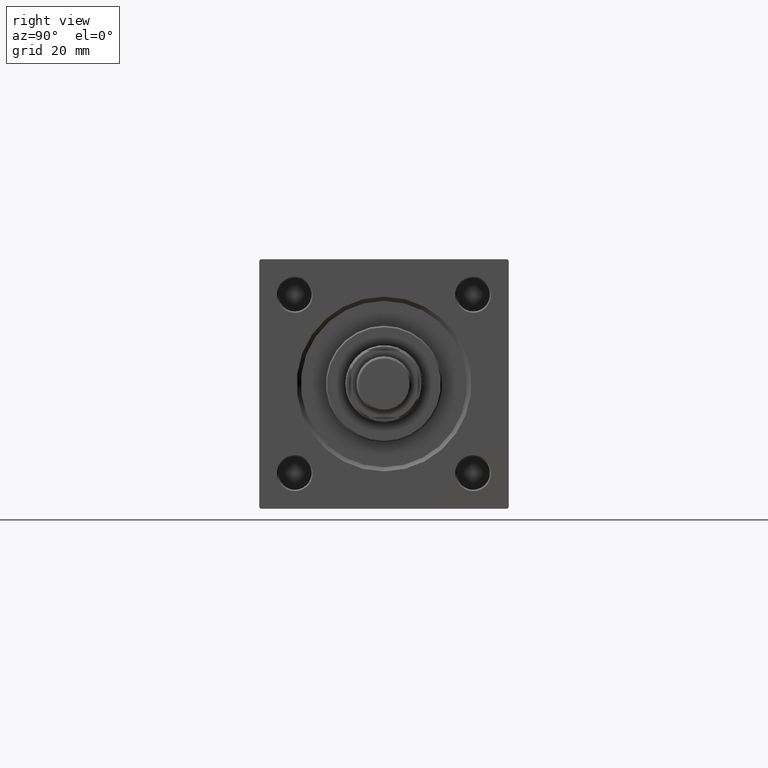
[diagram: clean part render]
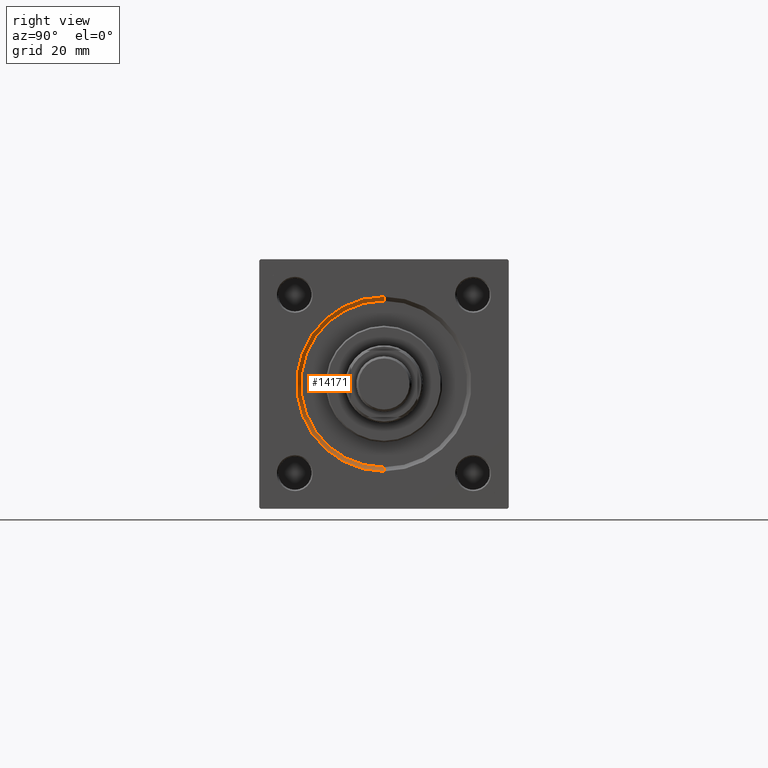
[diagram: same view with one face highlighted and labeled with its STEP entity id]
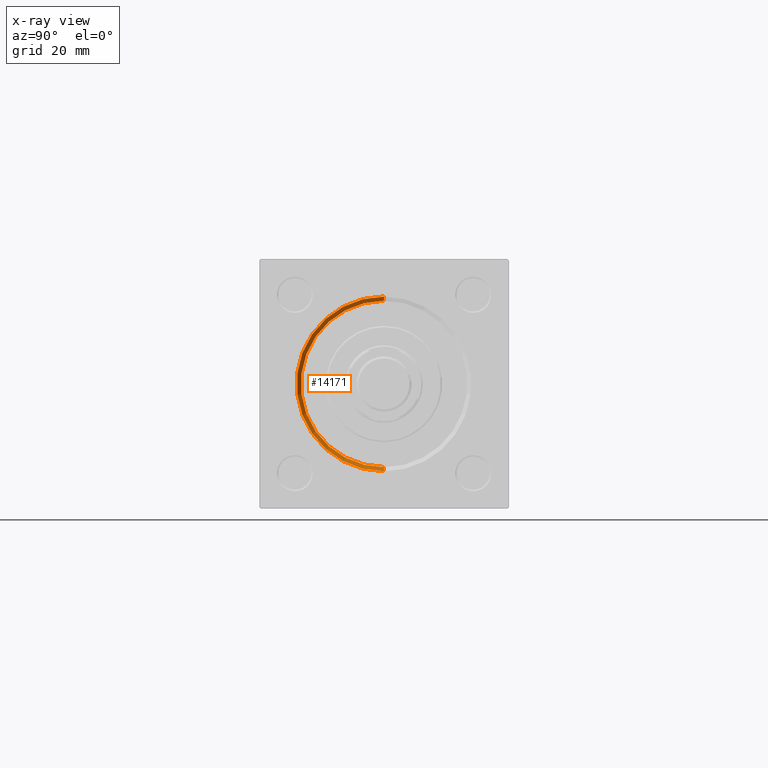
[diagram: x-ray of the same camera — body ghosted, the highlighted face saturated]
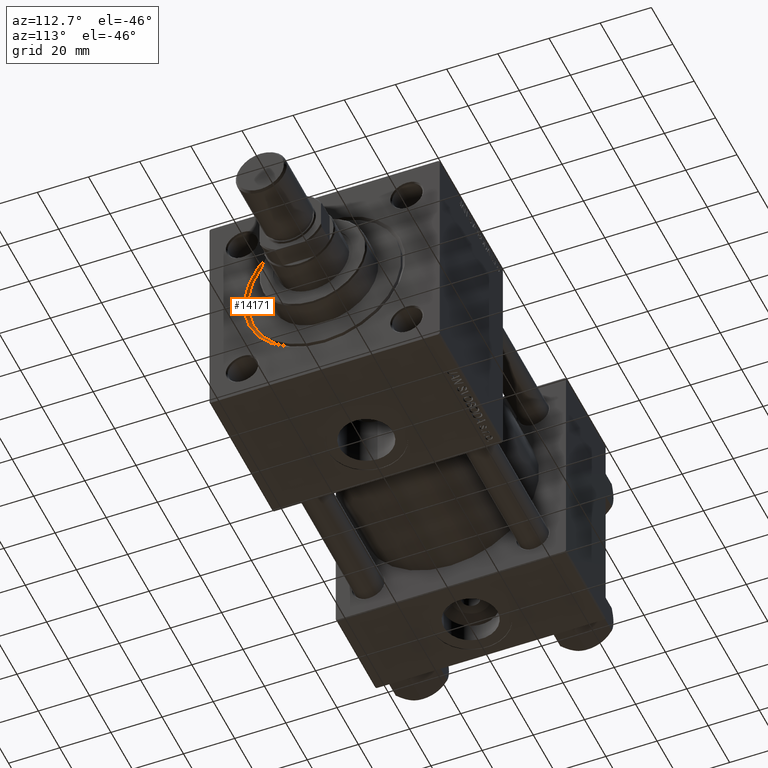
[diagram: same view with one face highlighted and labeled with its STEP entity id]
A machine part, right view. The second image highlights one B-rep face of the part: STEP entity #14171.
The next image is the same camera in x-ray: the body ghosted, the highlighted face saturated — about 0% of this face is hidden behind the body in this view.
A second angle (auxiliary view) of the same face is appended — the face is thin or edge-on in the first view.
In plain terms, the highlighted conical surface has half-angle 45 deg.
Its self-contained STEP definition (entity closure, byte-faithful):
#191 = CARTESIAN_POINT ( 'NONE',  ( 153.5000000000000000, 0.000000000000000000, 0.000000000000000000 ) ) ;
#1059 = AXIS2_PLACEMENT_3D ( 'NONE', #46242, #14729, #50345 ) ;
#5140 = DIRECTION ( 'NONE',  ( 0.7071067811865474617, 8.659560562354932858E-17, 0.7071067811865474617 ) ) ;
#5352 = VERTEX_POINT ( 'NONE', #12361 ) ;
#9822 = VERTEX_POINT ( 'NONE', #42904 ) ;
#10388 = DIRECTION ( 'NONE',  ( 0.7071067811865474617, 0.000000000000000000, -0.7071067811865474617 ) ) ;
#11144 = ORIENTED_EDGE ( 'NONE', *, *, #34006, .F. ) ;
#11342 = DIRECTION ( 'NONE',  ( 0.000000000000000000, 0.000000000000000000, -1.000000000000000000 ) ) ;
#11379 = CARTESIAN_POINT ( 'NONE',  ( 153.5000000000000000, 0.000000000000000000, -30.00000000000000000 ) ) ;
#11400 = ORIENTED_EDGE ( 'NONE', *, *, #16127, .F. ) ;
#12361 = CARTESIAN_POINT ( 'NONE',  ( 155.0000000000000000, 0.000000000000000000, -31.50000000000000000 ) ) ;
#13752 = EDGE_CURVE ( 'NONE', #38362, #38996, #38772, .T. ) ;
#14171 = ADVANCED_FACE ( 'NONE', ( #30569 ), #28929, .F. ) ;
#14729 = DIRECTION ( 'NONE',  ( -1.000000000000000000, -0.000000000000000000, -0.000000000000000000 ) ) ;
#15557 = DIRECTION ( 'NONE',  ( 1.000000000000000000, 0.000000000000000000, 0.000000000000000000 ) ) ;
#16127 = EDGE_CURVE ( 'NONE', #5352, #9822, #45252, .T. ) ;
#16665 = LINE ( 'NONE', #39226, #27921 ) ;
#16677 = AXIS2_PLACEMENT_3D ( 'NONE', #191, #15557, #18890 ) ;
#18890 = DIRECTION ( 'NONE',  ( 0.000000000000000000, 0.000000000000000000, 1.000000000000000000 ) ) ;
#19112 = CARTESIAN_POINT ( 'NONE',  ( 153.5000000000000000, 0.000000000000000000, -30.00000000000000000 ) ) ;
#19532 = CARTESIAN_POINT ( 'NONE',  ( 153.5000000000000000, 0.000000000000000000, 0.000000000000000000 ) ) ;
#27921 = VECTOR ( 'NONE', #5140, 1000.000000000000114 ) ;
#28929 = CONICAL_SURFACE ( 'NONE', #37143, 30.00000000000000000, 0.7853981633974482790 ) ;
#30569 = FACE_OUTER_BOUND ( 'NONE', #42279, .T. ) ;
#30858 = LINE ( 'NONE', #11379, #41705 ) ;
#34006 = EDGE_CURVE ( 'NONE', #38996, #5352, #30858, .T. ) ;
#34673 = DIRECTION ( 'NONE',  ( 1.000000000000000000, 0.000000000000000000, 0.000000000000000000 ) ) ;
#34752 = CARTESIAN_POINT ( 'NONE',  ( 153.5000000000000000, 3.673940397442059178E-15, 30.00000000000000000 ) ) ;
#37143 = AXIS2_PLACEMENT_3D ( 'NONE', #19532, #34673, #11342 ) ;
#38362 = VERTEX_POINT ( 'NONE', #34752 ) ;
#38729 = EDGE_CURVE ( 'NONE', #38362, #9822, #16665, .T. ) ;
#38772 = CIRCLE ( 'NONE', #16677, 30.00000000000000000 ) ;
#38996 = VERTEX_POINT ( 'NONE', #19112 ) ;
#39226 = CARTESIAN_POINT ( 'NONE',  ( 153.5000000000000000, 3.673940397442059178E-15, 30.00000000000000000 ) ) ;
#41705 = VECTOR ( 'NONE', #10388, 1000.000000000000114 ) ;
#42279 = EDGE_LOOP ( 'NONE', ( #45737, #46391, #11400, #11144 ) ) ;
#42904 = CARTESIAN_POINT ( 'NONE',  ( 155.0000000000000000, 3.857637417314162689E-15, 31.50000000000000000 ) ) ;
#45252 = CIRCLE ( 'NONE', #1059, 31.50000000000000000 ) ;
#45737 = ORIENTED_EDGE ( 'NONE', *, *, #13752, .F. ) ;
#46242 = CARTESIAN_POINT ( 'NONE',  ( 155.0000000000000000, 0.000000000000000000, 0.000000000000000000 ) ) ;
#46391 = ORIENTED_EDGE ( 'NONE', *, *, #38729, .T. ) ;
#50345 = DIRECTION ( 'NONE',  ( 0.000000000000000000, 0.000000000000000000, 1.000000000000000000 ) ) ;